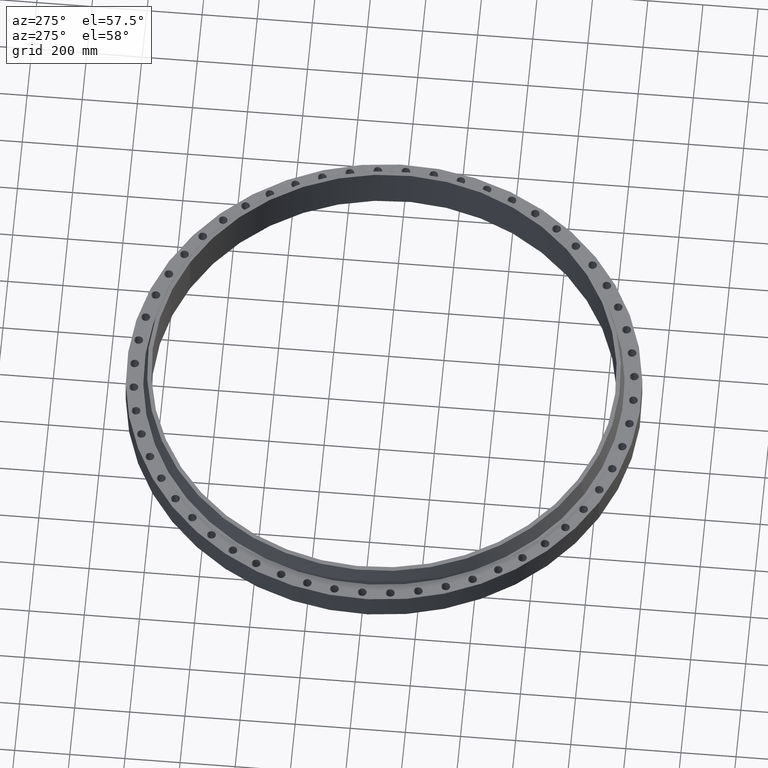
[diagram: clean part render]
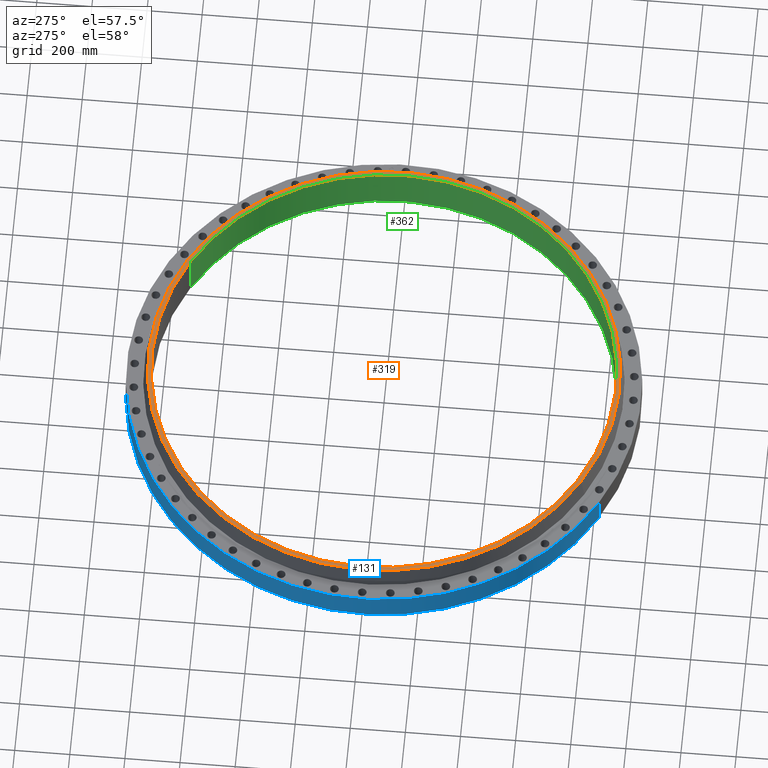
[diagram: same view with three faces highlighted in distinct colors, each labeled with its STEP entity id]
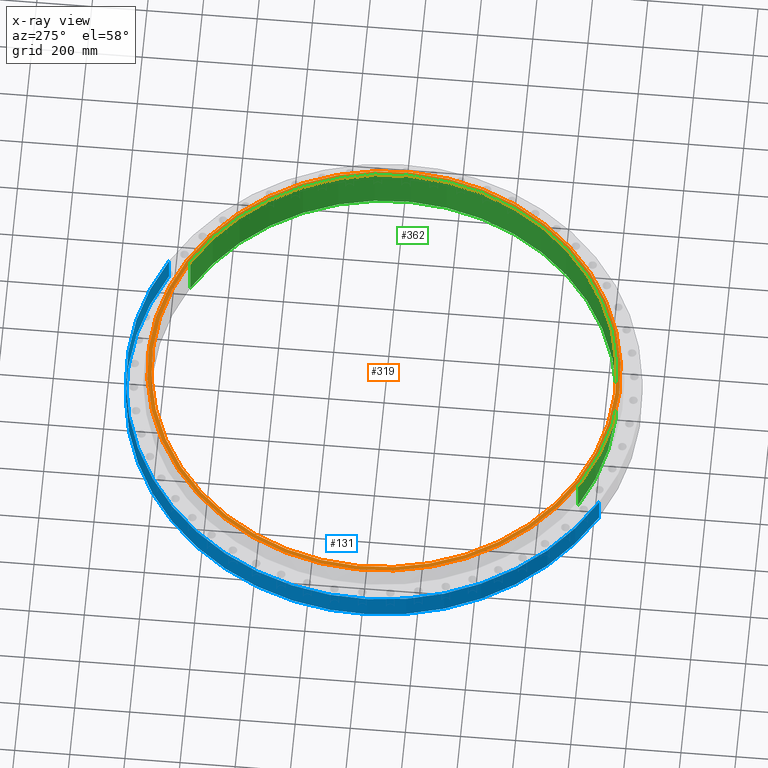
[diagram: x-ray of the same camera — body ghosted, the three highlighted faces saturated]
A machine part, auxiliary view with three faces highlighted in distinct colors.
The next image is the same camera in x-ray (body ghosted, the three faces saturated) — at least one of them is partly hidden behind the body in this view.
Their STEP definitions:

[orange] entity #319 — the highlighted planar face has unit normal (0, 0, -1).
#263=AXIS2_PLACEMENT_3D('Circle Axis2P3D',#261,#262,$) ;
#282=AXIS2_PLACEMENT_3D('Circle Axis2P3D',#280,#281,$) ;
#295=AXIS2_PLACEMENT_3D('Plane Axis2P3D',#292,#293,#294) ;
#303=AXIS2_PLACEMENT_3D('Circle Axis2P3D',#301,#302,$) ;
#312=AXIS2_PLACEMENT_3D('Circle Axis2P3D',#310,#311,$) ;
#258=CARTESIAN_POINT('Vertex',(16.1527248555,29.5673645203,6.88000000003)) ;
#261=CARTESIAN_POINT('Axis2P3D Location',(0.,0.,6.88000000003)) ;
#265=CARTESIAN_POINT('Vertex',(-16.1527248555,-29.5673645203,6.88000000003)) ;
#280=CARTESIAN_POINT('Axis2P3D Location',(0.,0.,6.88000000003)) ;
#292=CARTESIAN_POINT('Axis2P3D Location',(0.,33.6918323178,6.88000000003)) ;
#301=CARTESIAN_POINT('Axis2P3D Location',(0.,0.,6.88000000003)) ;
#305=CARTESIAN_POINT('Vertex',(-15.8809709663,-29.0699223627,6.88000000003)) ;
#307=CARTESIAN_POINT('Vertex',(15.8809709663,29.0699223627,6.88000000003)) ;
#310=CARTESIAN_POINT('Axis2P3D Location',(0.,0.,6.88000000003)) ;
#262=DIRECTION('Axis2P3D Direction',(0.,0.,-0.0393700787402)) ;
#281=DIRECTION('Axis2P3D Direction',(0.,0.,-0.0393700787402)) ;
#293=DIRECTION('Axis2P3D Direction',(0.,0.,-0.0393700787402)) ;
#294=DIRECTION('Axis2P3D XDirection',(0.0393700787402,0.,0.)) ;
#302=DIRECTION('Axis2P3D Direction',(0.,0.,-0.0393700787402)) ;
#311=DIRECTION('Axis2P3D Direction',(0.,0.,-0.0393700787402)) ;
#298=ORIENTED_EDGE('',*,*,#267,.F.) ;
#299=ORIENTED_EDGE('',*,*,#284,.F.) ;
#316=ORIENTED_EDGE('',*,*,#309,.T.) ;
#317=ORIENTED_EDGE('',*,*,#314,.T.) ;
#318=FACE_BOUND('',#315,.T.) ;
#319=ADVANCED_FACE('PartBody',(#300,#318),#296,.F.) ;
#264=CIRCLE('generated circle',#263,33.6918323178) ;
#283=CIRCLE('generated circle',#282,33.6918323178) ;
#304=CIRCLE('generated circle',#303,33.1250000001) ;
#313=CIRCLE('generated circle',#312,33.1250000001) ;
#267=EDGE_CURVE('',#259,#266,#264,.T.) ;
#284=EDGE_CURVE('',#266,#259,#283,.T.) ;
#309=EDGE_CURVE('',#306,#308,#304,.T.) ;
#314=EDGE_CURVE('',#308,#306,#313,.T.) ;
#297=EDGE_LOOP('',(#298,#299)) ;
#315=EDGE_LOOP('',(#316,#317)) ;
#300=FACE_OUTER_BOUND('',#297,.T.) ;
#296=PLANE('',#295) ;
#259=VERTEX_POINT('',#258) ;
#266=VERTEX_POINT('',#265) ;
#306=VERTEX_POINT('',#305) ;
#308=VERTEX_POINT('',#307) ;

[blue] entity #131 — the highlighted cylindrical surface (partial cylindrical patch) has radius 933.45 mm, axis along (0, 0, -1).
#95=AXIS2_PLACEMENT_3D('Cylinder Axis2P3D',#92,#93,#94) ;
#99=AXIS2_PLACEMENT_3D('Circle Axis2P3D',#97,#98,$) ;
#115=AXIS2_PLACEMENT_3D('Circle Axis2P3D',#113,#114,$) ;
#92=CARTESIAN_POINT('Axis2P3D Location',(0.,0.,3.44000000001)) ;
#97=CARTESIAN_POINT('Axis2P3D Location',(0.,0.,4.47585975282E-015)) ;
#101=CARTESIAN_POINT('Vertex',(-17.6188885438,-32.2511591496,4.47585975282E-015)) ;
#103=CARTESIAN_POINT('Vertex',(17.6188885438,32.2511591496,4.47585975282E-015)) ;
#106=CARTESIAN_POINT('Line Origine',(-17.6188885438,-32.2511591496,2.00000000001)) ;
#110=CARTESIAN_POINT('Vertex',(-17.6188885438,-32.2511591496,4.00000000002)) ;
#113=CARTESIAN_POINT('Axis2P3D Location',(0.,0.,4.00000000002)) ;
#117=CARTESIAN_POINT('Vertex',(17.6188885438,32.2511591496,4.00000000002)) ;
#120=CARTESIAN_POINT('Line Origine',(17.6188885438,32.2511591496,2.00000000001)) ;
#93=DIRECTION('Axis2P3D Direction',(0.,0.,-0.0393700787402)) ;
#94=DIRECTION('Axis2P3D XDirection',(0.0188750212049,0.0345504945626,0.)) ;
#98=DIRECTION('Axis2P3D Direction',(0.,0.,-0.0393700787402)) ;
#107=DIRECTION('Vector Direction',(0.,0.,-0.0393700787402)) ;
#114=DIRECTION('Axis2P3D Direction',(0.,0.,-0.0393700787402)) ;
#121=DIRECTION('Vector Direction',(0.,0.,-0.0393700787402)) ;
#108=VECTOR('Line Direction',#107,0.0393700787402) ;
#122=VECTOR('Line Direction',#121,0.0393700787402) ;
#126=ORIENTED_EDGE('',*,*,#105,.F.) ;
#127=ORIENTED_EDGE('',*,*,#112,.T.) ;
#128=ORIENTED_EDGE('',*,*,#119,.T.) ;
#129=ORIENTED_EDGE('',*,*,#124,.F.) ;
#131=ADVANCED_FACE('PartBody',(#130),#96,.T.) ;
#100=CIRCLE('generated circle',#99,36.7500000001) ;
#116=CIRCLE('generated circle',#115,36.7500000001) ;
#96=CYLINDRICAL_SURFACE('generated cylinder',#95,36.7500000001) ;
#105=EDGE_CURVE('',#102,#104,#100,.T.) ;
#112=EDGE_CURVE('',#102,#111,#109,.F.) ;
#119=EDGE_CURVE('',#111,#118,#116,.T.) ;
#124=EDGE_CURVE('',#104,#118,#123,.F.) ;
#125=EDGE_LOOP('',(#126,#127,#128,#129)) ;
#130=FACE_OUTER_BOUND('',#125,.T.) ;
#109=LINE('Line',#106,#108) ;
#123=LINE('Line',#120,#122) ;
#102=VERTEX_POINT('',#101) ;
#104=VERTEX_POINT('',#103) ;
#111=VERTEX_POINT('',#110) ;
#118=VERTEX_POINT('',#117) ;

[green] entity #362 — the highlighted cylindrical surface (partial cylindrical patch) has radius 841.375 mm, axis along (0, 0, -1).
#312=AXIS2_PLACEMENT_3D('Circle Axis2P3D',#310,#311,$) ;
#323=AXIS2_PLACEMENT_3D('Cylinder Axis2P3D',#320,#321,#322) ;
#353=AXIS2_PLACEMENT_3D('Circle Axis2P3D',#351,#352,$) ;
#305=CARTESIAN_POINT('Vertex',(-15.8809709663,-29.0699223627,6.88000000003)) ;
#307=CARTESIAN_POINT('Vertex',(15.8809709663,29.0699223627,6.88000000003)) ;
#310=CARTESIAN_POINT('Axis2P3D Location',(0.,0.,6.88000000003)) ;
#320=CARTESIAN_POINT('Axis2P3D Location',(0.,0.,3.44000000001)) ;
#325=CARTESIAN_POINT('Line Origine',(-15.8809709663,-29.0699223627,3.44000000001)) ;
#329=CARTESIAN_POINT('Vertex',(-15.8809709663,-29.0699223627,-4.02827377754E-014)) ;
#336=CARTESIAN_POINT('Vertex',(15.8809709663,29.0699223627,-4.02827377754E-014)) ;
#339=CARTESIAN_POINT('Line Origine',(15.8809709663,29.0699223627,3.44000000001)) ;
#351=CARTESIAN_POINT('Axis2P3D Location',(0.,0.,-4.14017027136E-014)) ;
#311=DIRECTION('Axis2P3D Direction',(0.,0.,-0.0393700787402)) ;
#321=DIRECTION('Axis2P3D Direction',(0.,0.,-0.0393700787402)) ;
#322=DIRECTION('Axis2P3D XDirection',(0.0188750212049,0.0345504945626,0.)) ;
#326=DIRECTION('Vector Direction',(0.,0.,-0.0393700787402)) ;
#340=DIRECTION('Vector Direction',(0.,0.,-0.0393700787402)) ;
#352=DIRECTION('Axis2P3D Direction',(0.,0.,-0.0393700787402)) ;
#327=VECTOR('Line Direction',#326,0.0393700787402) ;
#341=VECTOR('Line Direction',#340,0.0393700787402) ;
#357=ORIENTED_EDGE('',*,*,#314,.F.) ;
#358=ORIENTED_EDGE('',*,*,#343,.T.) ;
#359=ORIENTED_EDGE('',*,*,#355,.T.) ;
#360=ORIENTED_EDGE('',*,*,#331,.F.) ;
#362=ADVANCED_FACE('PartBody',(#361),#324,.F.) ;
#313=CIRCLE('generated circle',#312,33.1250000001) ;
#354=CIRCLE('generated circle',#353,33.1250000001) ;
#324=CYLINDRICAL_SURFACE('generated cylinder',#323,33.1250000001) ;
#314=EDGE_CURVE('',#308,#306,#313,.T.) ;
#331=EDGE_CURVE('',#306,#330,#328,.T.) ;
#343=EDGE_CURVE('',#308,#337,#342,.T.) ;
#355=EDGE_CURVE('',#337,#330,#354,.T.) ;
#356=EDGE_LOOP('',(#357,#358,#359,#360)) ;
#361=FACE_OUTER_BOUND('',#356,.T.) ;
#328=LINE('Line',#325,#327) ;
#342=LINE('Line',#339,#341) ;
#306=VERTEX_POINT('',#305) ;
#308=VERTEX_POINT('',#307) ;
#330=VERTEX_POINT('',#329) ;
#337=VERTEX_POINT('',#336) ;